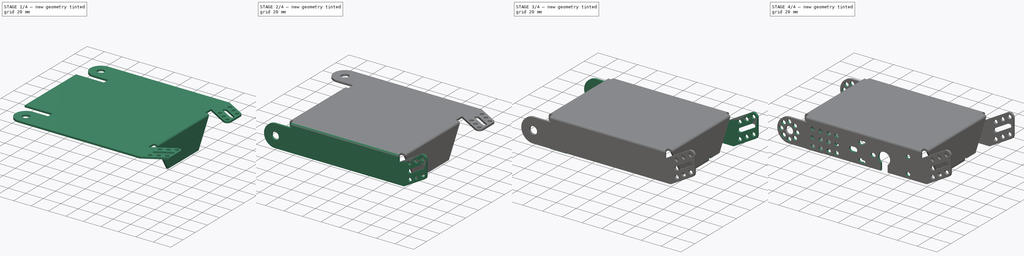
[diagram: build sequence overview — one tinted view per stage of 4, left to right]
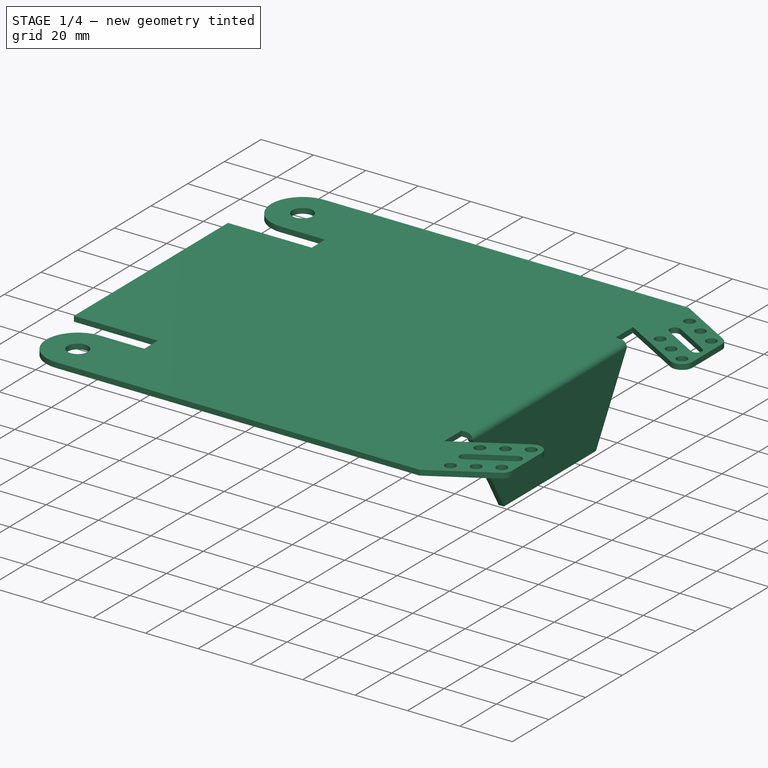
[diagram: stage 1 of 4 — iso view after this stage's code; geometry added in this stage tinted green]
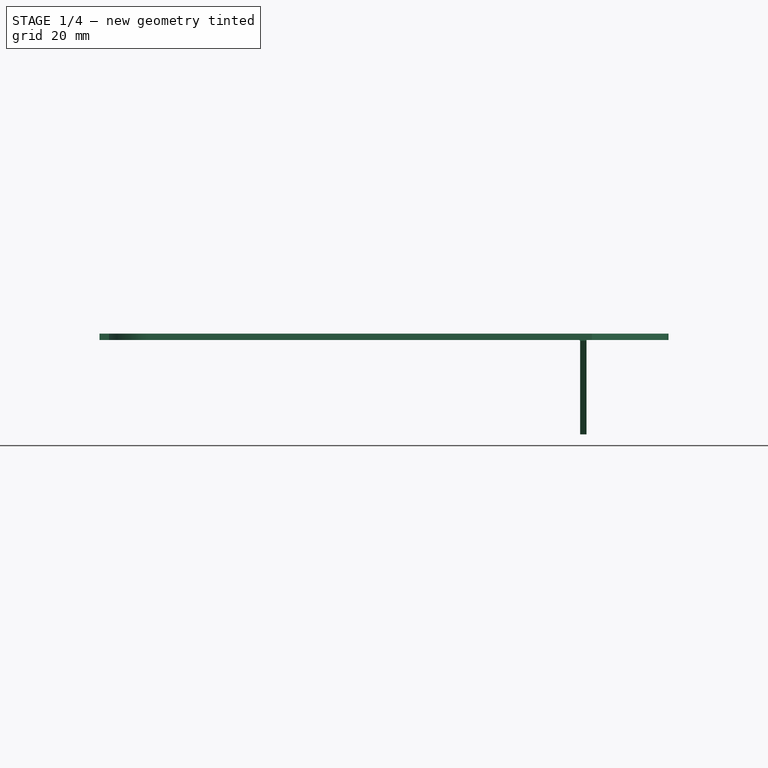
[diagram: stage 1 of 4 — front view after this stage's code; geometry added in this stage tinted green]
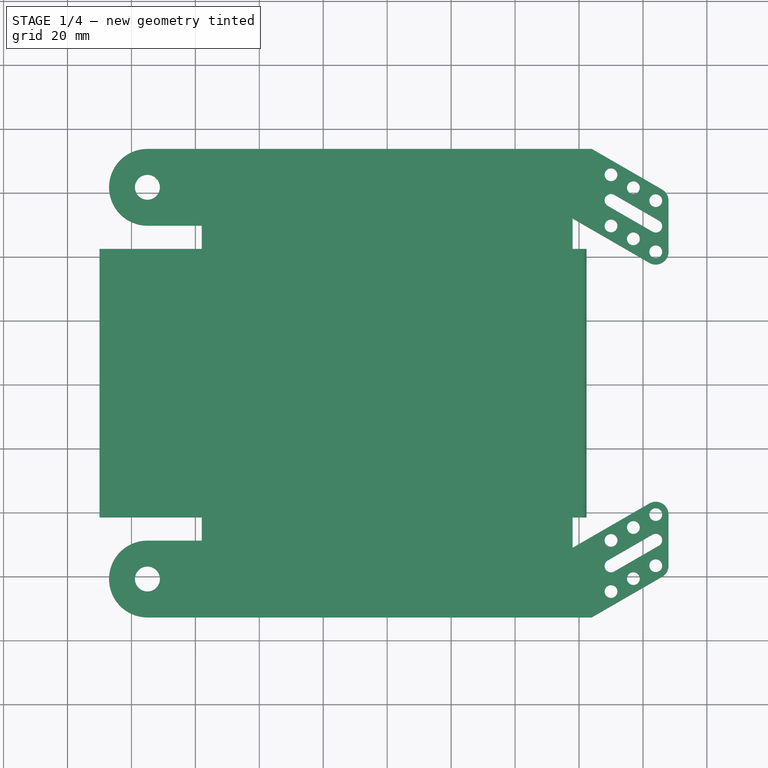
[diagram: stage 1 of 4 — top view after this stage's code; geometry added in this stage tinted green]
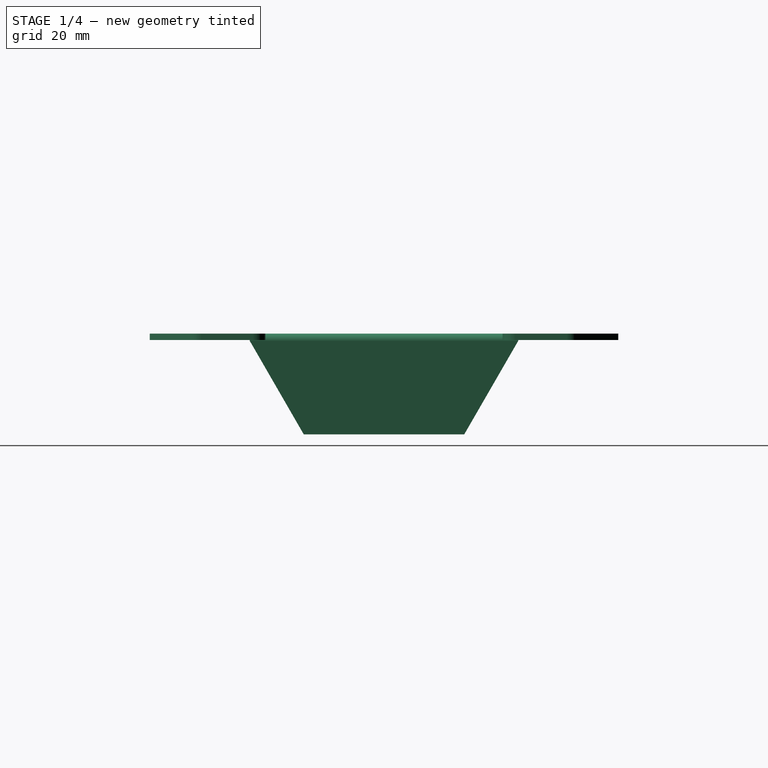
[diagram: stage 1 of 4 — right view after this stage's code; geometry added in this stage tinted green]
FCSTD DOCUMENT  (FreeCAD 0.21R33771 (Git))
Label: chasis_mBot-2
License: Creative Commons Attribution-NonCommercial-ShareAlike 4.0
LicenseURL: https://creativecommons.org/licenses/by-nc-sa/4.0/
objects: Sketcher::SketchObject×14, PartDesign::FeaturePython×6, Image::ImagePlane×3, PartDesign::Pocket×2, PartDesign::Pad×1, App::DocumentObjectGroup×1, PartDesign::Body×1
note: 27 computed .brp shape members not serialized (recipe doc carries the construction recipe); baked Part::Feature solids carry a one-line shape summary decoded from their .brp

FEATURE [Sketcher::SketchObject] Sketch  label="Sketch-chasis-base"
  FullyConstrained = true
  MapMode = 5
  Support = -> [XY_Plane]
  sketch-geometry (76):
    g0: LineSegment StartX=-58 StartY=42 StartZ=0 EndX=58 EndY=42 EndZ=0
    g1: LineSegment StartX=58 StartY=42 StartZ=0 EndX=58 EndY=-42 EndZ=0
    g2: LineSegment StartX=58 StartY=-42 StartZ=0 EndX=-58 EndY=-42 EndZ=0
    g3: LineSegment StartX=-58 StartY=-42 StartZ=0 EndX=-58 EndY=42 EndZ=0
    g4: LineSegment StartX=58 StartY=-42 StartZ=0 EndX=62 EndY=-42 EndZ=0
    g5: LineSegment StartX=62 StartY=-42 StartZ=0 EndX=91.275 EndY=-25.0981 EndZ=0
    g6: LineSegment StartX=91.275 StartY=-25.0981 StartZ=0 EndX=91.275 EndY=25.0981 EndZ=0
    g7: LineSegment StartX=91.275 StartY=25.0981 StartZ=0 EndX=62 EndY=42 EndZ=0
    g8: LineSegment StartX=62 StartY=42 StartZ=0 EndX=58 EndY=42 EndZ=0
    g9: LineSegment StartX=58 StartY=42 StartZ=0 EndX=58 EndY=73.27 EndZ=0
    g10: LineSegment StartX=58 StartY=73.27 StartZ=0 EndX=-75 EndY=73.27 EndZ=0
    g11: ArcOfCircle CenterX=-75 CenterY=61.27 CenterZ=0 NormalX=0 NormalY=0 NormalZ=1 AngleXU=0 Radius=12 StartAngle=1.5708 EndAngle=4.71239
    g12: LineSegment StartX=-75 StartY=49.27 StartZ=0 EndX=-58 EndY=49.27 EndZ=0
    g13: LineSegment StartX=-58 StartY=49.27 StartZ=0 EndX=-58 EndY=42 EndZ=0
    g14: LineSegment StartX=-58 StartY=42 StartZ=0 EndX=-90 EndY=42 EndZ=0
    g15: LineSegment StartX=-90 StartY=42 StartZ=0 EndX=-90 EndY=-42 EndZ=0
    g16: LineSegment StartX=-90 StartY=-42 StartZ=0 EndX=-58 EndY=-42 EndZ=0
    g17: LineSegment StartX=58 StartY=-73.27 StartZ=0 EndX=-75 EndY=-73.27 EndZ=0
    g18: ArcOfCircle CenterX=-75 CenterY=-61.27 CenterZ=0 NormalX=0 NormalY=0 NormalZ=1 AngleXU=0 Radius=12 StartAngle=1.5708 EndAngle=4.71239
    g19: LineSegment StartX=-75 StartY=-49.27 StartZ=0 EndX=-58 EndY=-49.27 EndZ=0
    g20: LineSegment StartX=-58 StartY=-49.27 StartZ=0 EndX=-58 EndY=-42 EndZ=0
    g21: LineSegment StartX=58 StartY=-73.27 StartZ=0 EndX=58 EndY=-42 EndZ=0
    g22: Circle CenterX=-75 CenterY=-61.27 CenterZ=0 NormalX=0 NormalY=0 NormalZ=1 AngleXU=0 Radius=3.9
    g23: Circle CenterX=-75 CenterY=61.27 CenterZ=0 NormalX=0 NormalY=0 NormalZ=1 AngleXU=0 Radius=3.9
    g24: LineSegment StartX=58 StartY=-42 StartZ=0 EndX=58 EndY=-51.4965 EndZ=0
    g25: LineSegment StartX=58 StartY=-51.4965 StartZ=0 EndX=82 EndY=-37.6401 EndZ=0
    g26: LineSegment StartX=88 StartY=-41.1042 StartZ=0 EndX=88 EndY=-57.1042 EndZ=0
    g27: LineSegment StartX=86 StartY=-60.5683 StartZ=0 EndX=64 EndY=-73.27 EndZ=0
    g28: LineSegment StartX=64 StartY=-73.27 StartZ=0 EndX=58 EndY=-73.27 EndZ=0
    g29: ArcOfCircle CenterX=84 CenterY=-41.1042 CenterZ=0 NormalX=0 NormalY=0 NormalZ=1 AngleXU=0 Radius=4 StartAngle=-9e-16 EndAngle=2.0944
    g30: ArcOfCircle CenterX=84 CenterY=-57.1042 CenterZ=0 NormalX=0 NormalY=0 NormalZ=1 AngleXU=0 Radius=4 StartAngle=5.23599 EndAngle=6.28319
    g31: LineSegment StartX=84 StartY=-41.1042 StartZ=0 EndX=70 EndY=-49.1871 EndZ=0
    g32: LineSegment StartX=70 StartY=-65.1871 StartZ=0 EndX=84 EndY=-57.1042 EndZ=0
    g33: Circle CenterX=84 CenterY=-41.1042 CenterZ=0 NormalX=0 NormalY=0 NormalZ=1 AngleXU=0 Radius=2
    g34: Circle CenterX=84 CenterY=-57.1042 CenterZ=0 NormalX=0 NormalY=0 NormalZ=1 AngleXU=0 Radius=2
    g35: Circle CenterX=70 CenterY=-65.1871 CenterZ=0 NormalX=0 NormalY=0 NormalZ=1 AngleXU=0 Radius=2
    g36: Circle CenterX=77 CenterY=-61.1456 CenterZ=0 NormalX=0 NormalY=0 NormalZ=1 AngleXU=0 Radius=2
    g37: Circle CenterX=77 CenterY=-45.1456 CenterZ=0 NormalX=0 NormalY=0 NormalZ=1 AngleXU=0 Radius=2
    g38: Circle CenterX=70 CenterY=-49.1871 CenterZ=0 NormalX=0 NormalY=0 NormalZ=1 AngleXU=0 Radius=2
    g39: ArcOfCircle CenterX=84 CenterY=-49.1042 CenterZ=0 NormalX=0 NormalY=0 NormalZ=1 AngleXU=0 Radius=2 StartAngle=5.23599 EndAngle=8.37758
    g40: ArcOfCircle CenterX=70 CenterY=-57.1871 CenterZ=0 NormalX=0 NormalY=0 NormalZ=1 AngleXU=0 Radius=2 StartAngle=2.0944 EndAngle=5.23599
    g41: LineSegment StartX=83 StartY=-47.3721 StartZ=0 EndX=69 EndY=-55.455 EndZ=0
    g42: LineSegment StartX=71 StartY=-58.9191 StartZ=0 EndX=85 EndY=-50.8362 EndZ=0
    g43: LineSegment StartX=84 StartY=-41.1042 StartZ=0 EndX=84 EndY=-49.1042 EndZ=0
    g44: LineSegment StartX=84 StartY=-49.1042 StartZ=0 EndX=84 EndY=-57.1042 EndZ=0
    g45: LineSegment StartX=70 StartY=-49.1871 StartZ=0 EndX=70 EndY=-57.1871 EndZ=0
    g46: LineSegment StartX=70 StartY=-57.1871 StartZ=0 EndX=70 EndY=-65.1871 EndZ=0
    g47: LineSegment StartX=77 StartY=-45.1456 StartZ=0 EndX=77 EndY=-61.1456 EndZ=0
    g48: LineSegment StartX=70 StartY=-49.1871 StartZ=0 EndX=77 EndY=-49.1871 EndZ=0
    g49: LineSegment StartX=77 StartY=-45.1456 StartZ=0 EndX=84 EndY=-45.1456 EndZ=0
    g50: LineSegment StartX=58 StartY=42 StartZ=0 EndX=58 EndY=51.4965 EndZ=0
    g51: LineSegment StartX=58 StartY=51.4965 StartZ=0 EndX=82 EndY=37.6401 EndZ=0
    g52: LineSegment StartX=88 StartY=41.1042 StartZ=0 EndX=88 EndY=57.1042 EndZ=0
    g53: LineSegment StartX=86 StartY=60.5683 StartZ=0 EndX=64 EndY=73.27 EndZ=0
    g54: LineSegment StartX=64 StartY=73.27 StartZ=0 EndX=58 EndY=73.27 EndZ=0
    g55: ArcOfCircle CenterX=84 CenterY=41.1042 CenterZ=0 NormalX=0 NormalY=0 NormalZ=1 AngleXU=0 Radius=4 StartAngle=4.18879 EndAngle=6.28319
    g56: ArcOfCircle CenterX=84 CenterY=57.1042 CenterZ=0 NormalX=0 NormalY=0 NormalZ=1 AngleXU=0 Radius=4 StartAngle=8e-16 EndAngle=1.0472
    g57: LineSegment StartX=84 StartY=41.1042 StartZ=0 EndX=70 EndY=49.1871 EndZ=0
    g58: LineSegment StartX=70 StartY=65.1871 StartZ=0 EndX=84 EndY=57.1042 EndZ=0
    g59: Circle CenterX=84 CenterY=41.1042 CenterZ=0 NormalX=0 NormalY=0 NormalZ=1 AngleXU=0 Radius=2
    g60: Circle CenterX=84 CenterY=57.1042 CenterZ=0 NormalX=0 NormalY=0 NormalZ=1 AngleXU=0 Radius=2
    g61: Circle CenterX=70 CenterY=65.1871 CenterZ=0 NormalX=0 NormalY=0 NormalZ=1 AngleXU=0 Radius=2
    g62: Circle CenterX=77 CenterY=61.1456 CenterZ=0 NormalX=0 NormalY=0 NormalZ=1 AngleXU=0 Radius=2
    g63: Circle CenterX=77 CenterY=45.1456 CenterZ=0 NormalX=0 NormalY=0 NormalZ=1 AngleXU=0 Radius=2
    g64: Circle CenterX=70 CenterY=49.1871 CenterZ=0 NormalX=0 NormalY=0 NormalZ=1 AngleXU=0 Radius=2
    g65: ArcOfCircle CenterX=84 CenterY=49.1042 CenterZ=0 NormalX=0 NormalY=0 NormalZ=1 AngleXU=0 Radius=2 StartAngle=4.18879 EndAngle=7.33038
    g66: ArcOfCircle CenterX=70 CenterY=57.1871 CenterZ=0 NormalX=0 NormalY=0 NormalZ=1 AngleXU=0 Radius=2 StartAngle=1.0472 EndAngle=4.18879
    g67: LineSegment StartX=83 StartY=47.3721 StartZ=0 EndX=69 EndY=55.455 EndZ=0
    g68: LineSegment StartX=71 StartY=58.9191 StartZ=0 EndX=85 EndY=50.8362 EndZ=0
    g69: LineSegment StartX=84 StartY=41.1042 StartZ=0 EndX=84 EndY=49.1042 EndZ=0
    g70: LineSegment StartX=84 StartY=49.1042 StartZ=0 EndX=84 EndY=57.1042 EndZ=0
    g71: LineSegment StartX=70 StartY=49.1871 StartZ=0 EndX=70 EndY=57.1871 EndZ=0
    g72: LineSegment StartX=70 StartY=57.1871 StartZ=0 EndX=70 EndY=65.1871 EndZ=0
    g73: LineSegment StartX=77 StartY=45.1456 StartZ=0 EndX=77 EndY=61.1456 EndZ=0
    g74: LineSegment StartX=70 StartY=49.1871 StartZ=0 EndX=77 EndY=49.1871 EndZ=0
    g75: LineSegment StartX=77 StartY=45.1456 StartZ=0 EndX=84 EndY=45.1456 EndZ=0
  constraints (190):
    c: Coincident(g0,g1)
    c: Coincident(g1,g2)
    c: Coincident(g2,g3)
    c: Coincident(g3,g0)
    c: Horizontal(g0)
    c: Horizontal(g2)
    c: Vertical(g1)
    c: Vertical(g3)
    c: Symmetric(g0,g1,g-1)
    c: DistanceY(g3,g3) = 84
    c: DistanceX(g0,g0) = 116
    c: Coincident(g1,g4)
    c: Horizontal(g4)
    c: Coincident(g4,g5)
    c: Coincident(g5,g6)
    c: Coincident(g6,g7)
    c: Coincident(g7,g8)
    c: Coincident(g8,g0)
    c: Horizontal(g8)
    c: Coincident(g9,g10)
    c: Horizontal(g10)
    c: Tangent(g10,g11) = -1.5708
    c: Tangent(g11,g12) = -1.5708
    c: Coincident(g12,g13)
    c: Coincident(g13,g0)
    c: Vertical(g13)
    c: Horizontal(g12)
    c: Angle(g1,g7) = 1.0472
    c: Angle(g5,g1) = 1.0472
    c: Symmetric(g6,g5,g-1)
    c: Coincident(g9,g8)
    c: Vertical(g9)
    c: Coincident(g13,g14)
    c: Horizontal(g14)
    c: Coincident(g14,g15)
    c: Vertical(g15)
    c: Coincident(g15,g16)
    c: Coincident(g16,g2)
    c: Horizontal(g16)
    c: Horizontal(g17)
    c: Tangent(g17,g18) = 1.5708
    c: Tangent(g18,g19) = 1.5708
    c: Horizontal(g19)
    c: Coincident(g20,g19)
    c: Coincident(g20,g16)
    c: Vertical(g20)
    c: Coincident(g21,g17)
    c: Coincident(g21,g4)
    c: Vertical(g21)
    c: DistanceX(g8,g8) = 4
    c: Equal(g18,g11)
    c: Equal(g13,g20)
    c: DistanceY(g13,g13) = 7.27
    c: DistanceX(g16,g16) = 32
    c: Radius(g18) = 12
    c: DistanceX(g19,g19) = 17
    c: Coincident(g22,g18)
    c: Radius(g22) = 3.9
    c: Equal(g12,g19)
    c: Coincident(g23,g11)
    c: Equal(g23,g22)
    c: DistanceX(g4,g5) = 33.275
    c: Coincident(g4,g24)
    c: PointOnObject(g24,g21)
    c: Coincident(g24,g25)
    c: Vertical(g26)
    c: Coincident(g27,g28)
    c: Coincident(g28,g17)
    c: Horizontal(g28)
    c: Tangent(g25,g29) = 1.5708
    c: Tangent(g26,g29) = 1.5708
    c: Tangent(g26,g30) = 1.5708
    c: Tangent(g27,g30) = 1.5708
    c: Parallel(g25,g27)
    c: Parallel(g27,g5)
    c: Equal(g29,g30)
    c: Radius(g29) = 4
    c: DistanceX(g17,g26) = 30
    c: DistanceX(g28,g28) = 6
    c: Coincident(g31,g29)
    c: Coincident(g32,g30)
    c: Parallel(g32,g31)
    c: Parallel(g31,g25)
    c: Coincident(g33,g29)
    c: Coincident(g34,g30)
    c: PointOnObject(g36,g32)
    c: PointOnObject(g37,g31)
    c: Coincident(g38,g31)
    c: Tangent(g39,g41) = -1.5708
    c: Tangent(g41,g40) = -1.5708
    c: Tangent(g40,g42) = -1.5708
    c: Tangent(g42,g39) = -1.5708
    c: Equal(g39,g40)
    c: Equal(g38,g40)
    c: Equal(g40,g35)
    c: Equal(g35,g36)
    c: Equal(g36,g34)
    c: Equal(g34,g37)
    c: Equal(g37,g33)
    c: Radius(g38) = 2
    c: Coincident(g43,g29)
    c: Coincident(g43,g39)
    c: Coincident(g44,g39)
    c: Coincident(g44,g30)
    c: Vertical(g43)
    c: Coincident(g45,g38)
    c: Coincident(g45,g40)
    c: Vertical(g45)
    c: Coincident(g46,g40)
    c: Coincident(g46,g35)
    c: Vertical(g46)
    c: Equal(g45,g43)
    c: Equal(g43,g44)
    c: Coincident(g32,g35)
    c: DistanceY(g35,g38) = 16
    c: DistanceX(g35,g30) = 14
    c: Coincident(g47,g37)
    c: Coincident(g47,g36)
    c: Vertical(g47)
    c: Coincident(g48,g38)
    c: PointOnObject(g48,g47)
    c: Horizontal(g48)
    c: Coincident(g49,g37)
    c: PointOnObject(g49,g43)
    c: Horizontal(g49)
    c: Equal(g48,g49)
    c: Coincident(g50,g51)
    c: Vertical(g52)
    c: Coincident(g53,g54)
    c: Horizontal(g54)
    c: Tangent(g51,g55) = -1.5708
    c: Tangent(g52,g55) = -1.5708
    c: Tangent(g52,g56) = -1.5708
    c: Tangent(g53,g56) = -1.5708
    c: Parallel(g51,g53)
    c: Equal(g55,g56)
    c: Radius(g55) = 4
    c: Coincident(g57,g55)
    c: Coincident(g58,g56)
    c: Parallel(g58,g57)
    c: Parallel(g57,g51)
    c: Coincident(g59,g55)
    c: Coincident(g60,g56)
    c: PointOnObject(g62,g58)
    c: PointOnObject(g63,g57)
    c: Coincident(g64,g57)
    c: Tangent(g65,g67) = 1.5708
    c: Tangent(g67,g66) = 1.5708
    c: Tangent(g66,g68) = 1.5708
    c: Tangent(g68,g65) = 1.5708
    c: Equal(g65,g66)
    c: Equal(g64,g66)
    c: Equal(g66,g61)
    c: Equal(g61,g62)
    c: Equal(g62,g60)
    c: Equal(g60,g63)
    c: Equal(g63,g59)
    c: Radius(g64) = 2
    c: Coincident(g69,g55)
    c: Coincident(g69,g65)
    c: Coincident(g70,g65)
    c: Coincident(g70,g56)
    c: Vertical(g69)
    c: Coincident(g71,g64)
    c: Coincident(g71,g66)
    c: Vertical(g71)
    c: Coincident(g72,g66)
    c: Coincident(g72,g61)
    c: Vertical(g72)
    c: Equal(g71,g69)
    c: Equal(g69,g70)
    c: Coincident(g58,g61)
    c: Coincident(g73,g63)
    c: Coincident(g73,g62)
    c: Vertical(g73)
    c: Coincident(g74,g64)
    c: PointOnObject(g74,g73)
    c: Horizontal(g74)
    c: Coincident(g75,g63)
    c: PointOnObject(g75,g69)
    c: Horizontal(g75)
    c: Equal(g74,g75)
    c: Coincident(g50,g8)
    c: Vertical(g50)
    c: Parallel(g51,g7)
    c: Coincident(g54,g10)
    c: DistanceX(g54,g54) = 6
    c: DistanceX(g61,g56) = 14
    c: DistanceY(g64,g61) = 16
    c: DistanceX(g10,g52) = 30
FEATURE [PartDesign::Pad] Pad  label="Pad-chasis-base"
  Direction = (0,0,1)
  Length = 2
  Length2 = 10
  Profile = -> Sketch
  ReferenceAxis = -> Sketch [N_Axis]
  Type = 0
FEATURE [Sketcher::SketchObject] Sketch001  label="Sketch-bend-tail"
  ExternalGeometry = -> [Pad]
  FullyConstrained = false
  MapMode = 5
  Support = -> [XY_Plane]
  sketch-geometry (1):
    g0: LineSegment StartX=60 StartY=43.2036 StartZ=0 EndX=60 EndY=-43.2158 EndZ=0
  constraints (2):
    c: Vertical(g0)
    c: DistanceX(g-3,g0) = 2
FEATURE [PartDesign::FeaturePython] Fold  label="Fold-tail"  # WARN: FeaturePython — macro-defined, semantics opaque (R4)
  BaseFeature = -> Pad
  BendLine = -> Sketch001
  Position = 0
  angle = 90
  baseObject = -> Pad [Face53]
  invert = false
  invertbend = false
  kfactor = 0.5
  radius = 0.35
  unfold = false
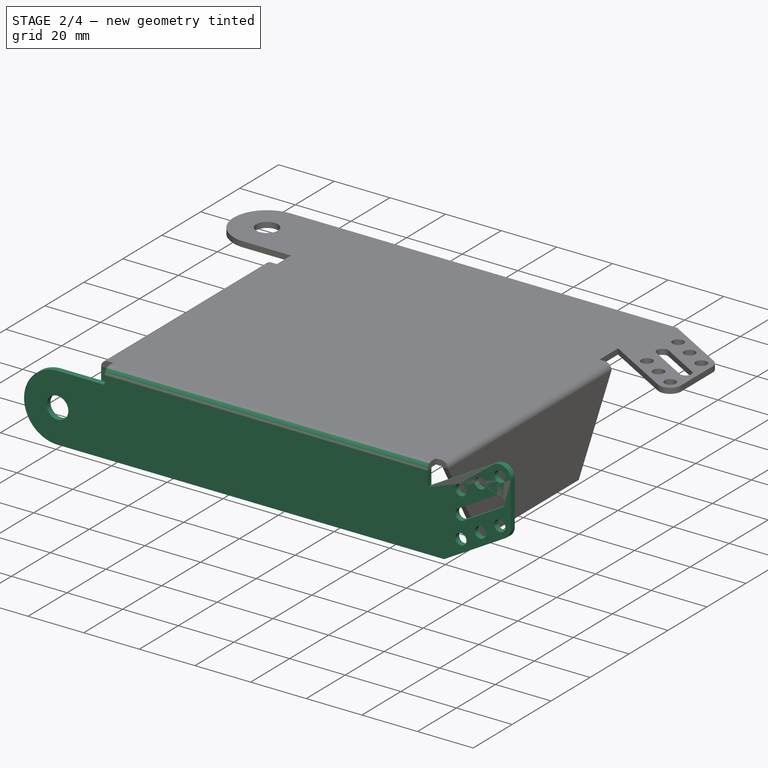
[diagram: stage 2 of 4 — iso view after this stage's code; geometry added in this stage tinted green]
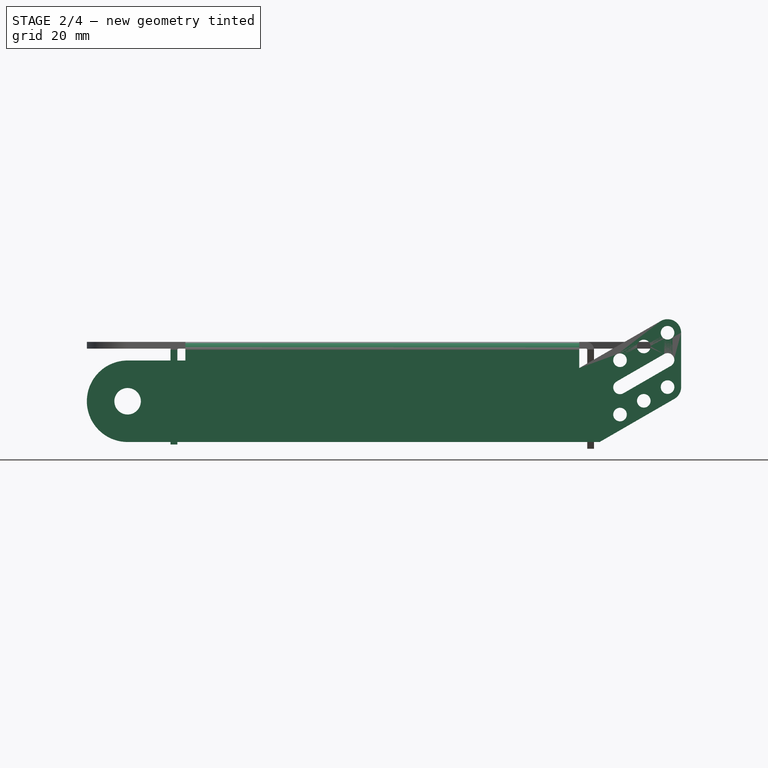
[diagram: stage 2 of 4 — front view after this stage's code; geometry added in this stage tinted green]
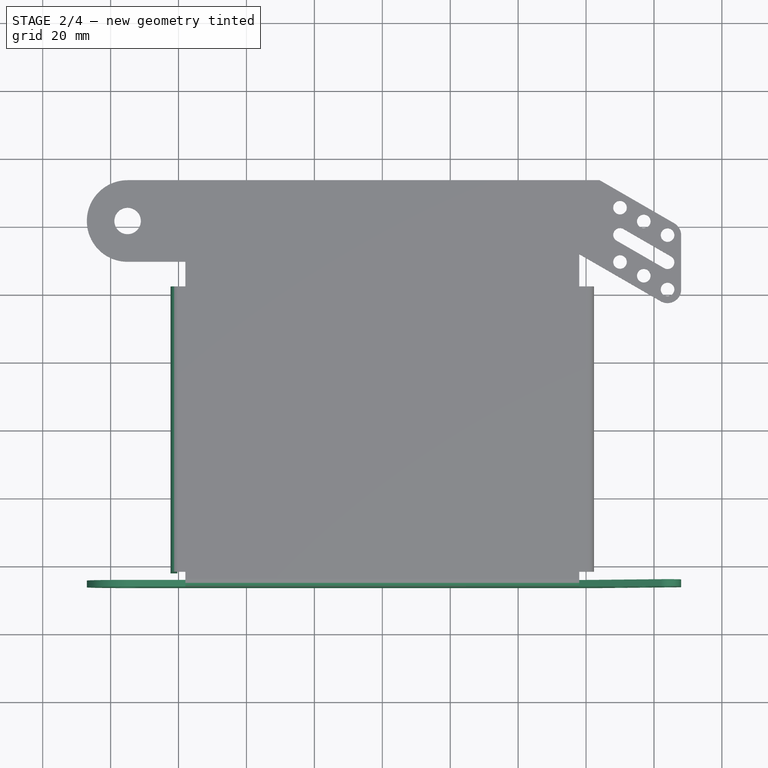
[diagram: stage 2 of 4 — top view after this stage's code; geometry added in this stage tinted green]
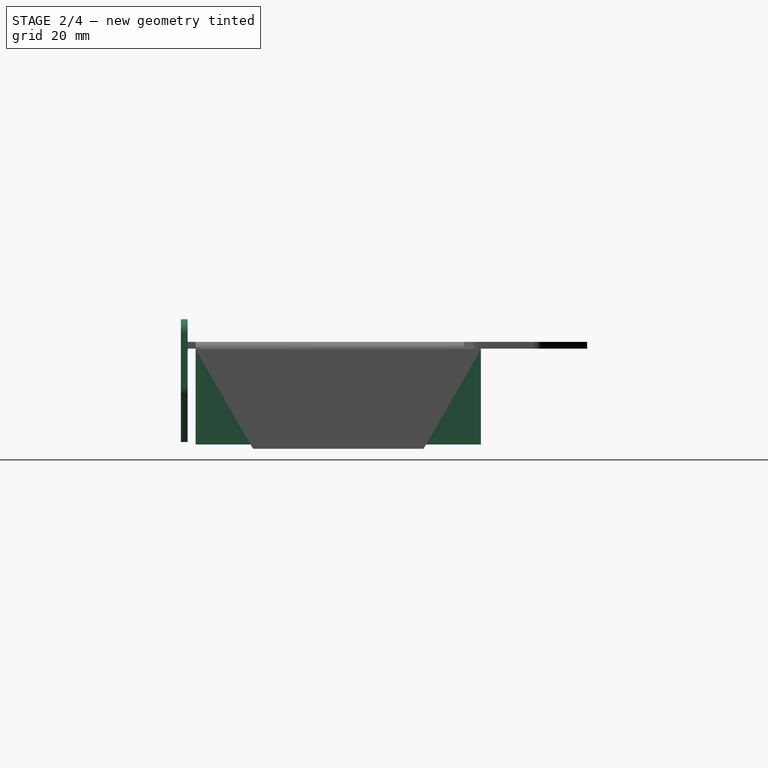
[diagram: stage 2 of 4 — right view after this stage's code; geometry added in this stage tinted green]
FEATURE [Sketcher::SketchObject] Sketch002  label="Sketch-bend-head"
  ExternalGeometry = -> [Fold]
  FullyConstrained = false
  MapMode = 5
  Support = -> [XY_Plane]
  sketch-geometry (1):
    g0: LineSegment StartX=-60 StartY=43.0425 StartZ=0 EndX=-60 EndY=-44.0534 EndZ=0
  constraints (2):
    c: Vertical(g0)
    c: DistanceX(g0,g-3) = 2
FEATURE [PartDesign::FeaturePython] Fold001  label="Fold-head"  # WARN: FeaturePython — macro-defined, semantics opaque (R4)
  BaseFeature = -> Fold
  BendLine = -> Sketch002
  Position = 0
  angle = 90
  baseObject = -> Fold [Face2]
  invert = false
  invertbend = false
  kfactor = 0.5
  radius = 0.35
  unfold = false
FEATURE [Sketcher::SketchObject] Sketch003  label="Sketch-bend-right-side"
  ExternalGeometry = -> [Fold001]
  FullyConstrained = false
  MapMode = 5
  Support = -> [XY_Plane]
  sketch-geometry (1):
    g0: LineSegment StartX=-59.881 StartY=-44 StartZ=0 EndX=59.1175 EndY=-44 EndZ=0
  constraints (2):
    c: Horizontal(g0)
    c: DistanceY(g0,g-3) = 2
FEATURE [PartDesign::FeaturePython] Fold002  label="Fold-right-side"  # WARN: FeaturePython — macro-defined, semantics opaque (R4)
  BaseFeature = -> Fold001
  BendLine = -> Sketch003
  Position = 0
  angle = 90
  baseObject = -> Fold001 [Face5]
  invert = false
  invertbend = false
  kfactor = 0.5
  radius = 0.35
  unfold = false
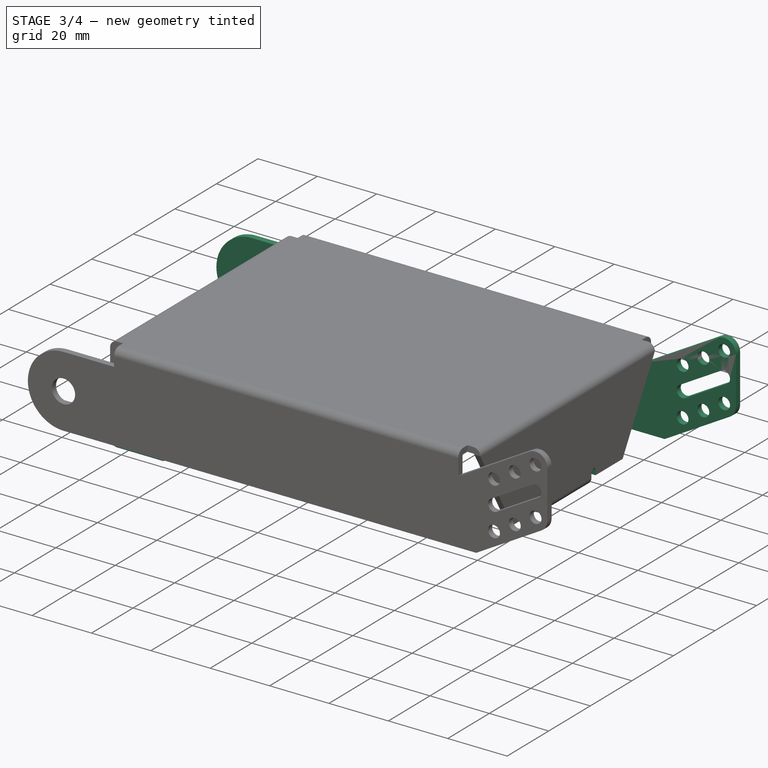
[diagram: stage 3 of 4 — iso view after this stage's code; geometry added in this stage tinted green]
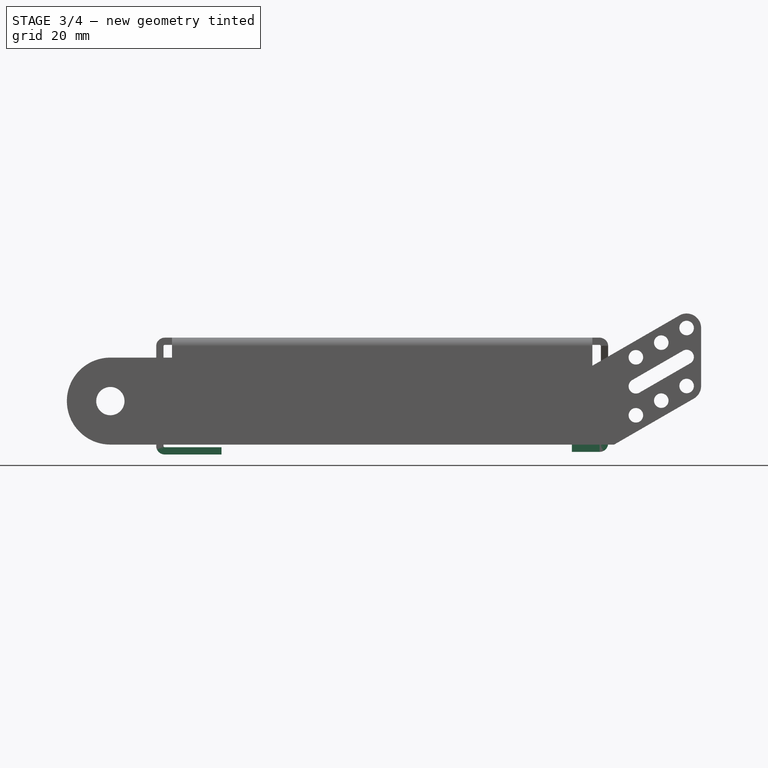
[diagram: stage 3 of 4 — front view after this stage's code; geometry added in this stage tinted green]
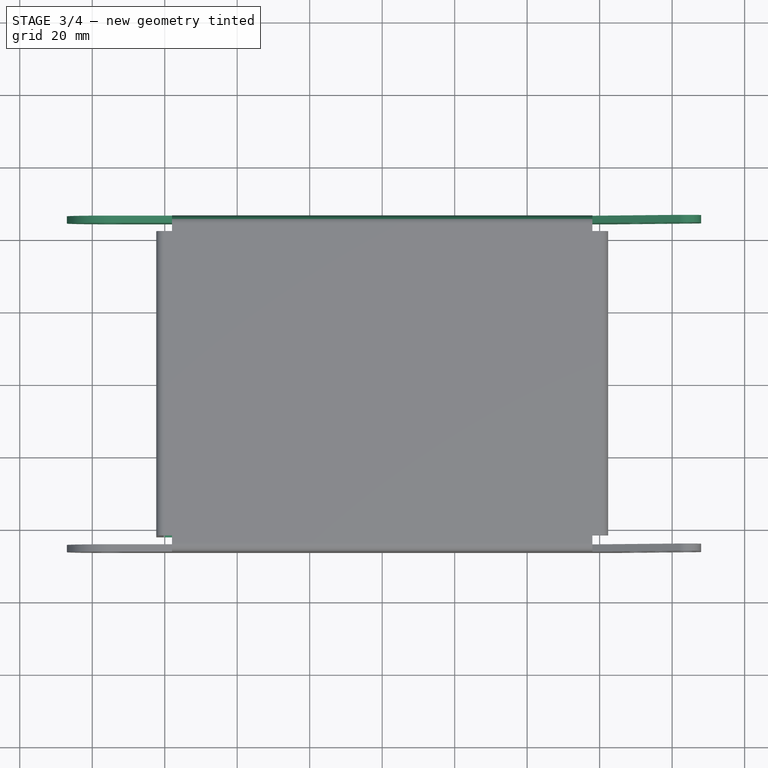
[diagram: stage 3 of 4 — top view after this stage's code; geometry added in this stage tinted green]
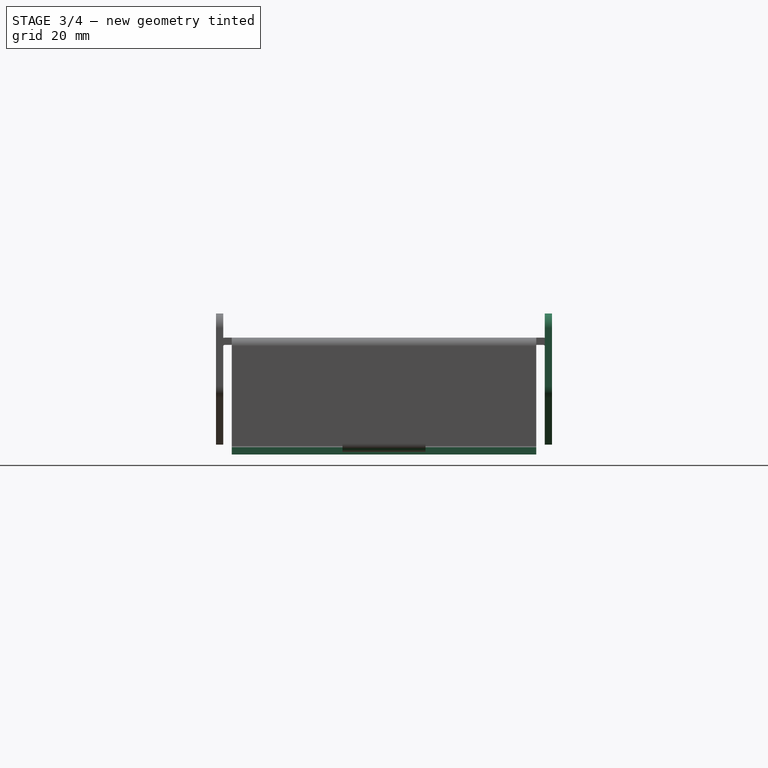
[diagram: stage 3 of 4 — right view after this stage's code; geometry added in this stage tinted green]
FEATURE [Sketcher::SketchObject] Sketch004  label="Sketch-bend-left-side"
  ExternalGeometry = -> [Fold002]
  FullyConstrained = false
  MapMode = 5
  Support = -> [XY_Plane]
  sketch-geometry (1):
    g0: LineSegment StartX=-58.7819 StartY=44 StartZ=0 EndX=59.026 EndY=44 EndZ=0
  constraints (2):
    c: Horizontal(g0)
    c: DistanceY(g-3,g0) = 2
FEATURE [PartDesign::FeaturePython] Fold003  label="Fold-left-side"  # WARN: FeaturePython — macro-defined, semantics opaque (R4)
  BaseFeature = -> Fold002
  BendLine = -> Sketch004
  Position = 0
  angle = 90
  baseObject = -> Fold002 [Face2]
  invert = false
  invertbend = false
  kfactor = 0.5
  radius = 0.35
  unfold = false
FEATURE [PartDesign::FeaturePython] Bend  label="Bend-line-sensors-support"  # WARN: FeaturePython — macro-defined, semantics opaque (R4)
  AutoMiter = true
  BaseFeature = -> Fold003
  BendType = 2
  LengthList = [15.65]
  LengthSpec = 0
  ReliefFactor = 0.7
  UseReliefFactor = false
  angle = -90
  baseObject = -> Fold003 [Face79]
  bendAList = [-90]
  extend1 = 0
  extend2 = 0
  gap1 = 0
  gap2 = 0
  invert = false
  kfactor = 0.5
  length = 15.65
  maxExtendDist = 5
  minGap = 0.2
  minReliefGap = 1
  miterangle1 = 0
  miterangle2 = 0
  offset = 0
  radius = 0.35
  reliefType = 0
  reliefd = 1
  reliefw = 0.8
  sketchflip = false
  sketchinvert = false
  unfold = false
FEATURE [PartDesign::FeaturePython] Bend001  label="Bend-tail-bottom-support"  # WARN: FeaturePython — macro-defined, semantics opaque (R4)
  AutoMiter = true
  BaseFeature = -> Bend
  BendType = 1
  LengthList = [7.65]
  LengthSpec = 0
  ReliefFactor = 0.7
  UseReliefFactor = false
  angle = -90
  baseObject = -> Bend [Face93]
  bendAList = [-90]
  extend1 = 0
  extend2 = 0
  gap1 = 15
  gap2 = 15
  invert = false
  kfactor = 0.5
  length = 7.65
  maxExtendDist = 5
  minGap = 0.2
  minReliefGap = 1
  miterangle1 = 0
  miterangle2 = 0
  offset = 0
  radius = 0.35
  reliefType = 1
  reliefd = 2.5
  reliefw = 2
  sketchflip = false
  sketchinvert = false
  unfold = false
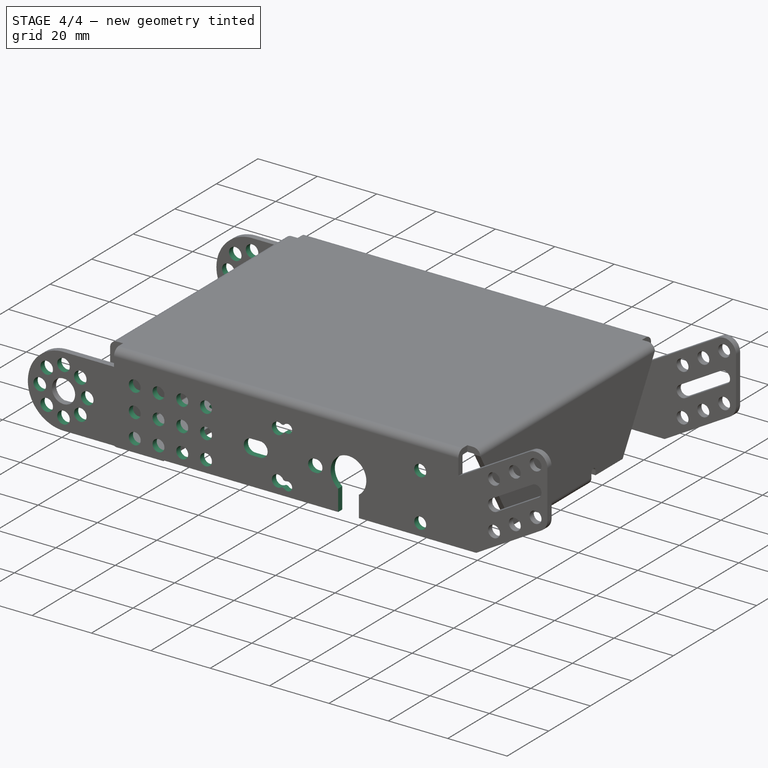
[diagram: stage 4 of 4 — iso view after this stage's code; geometry added in this stage tinted green]
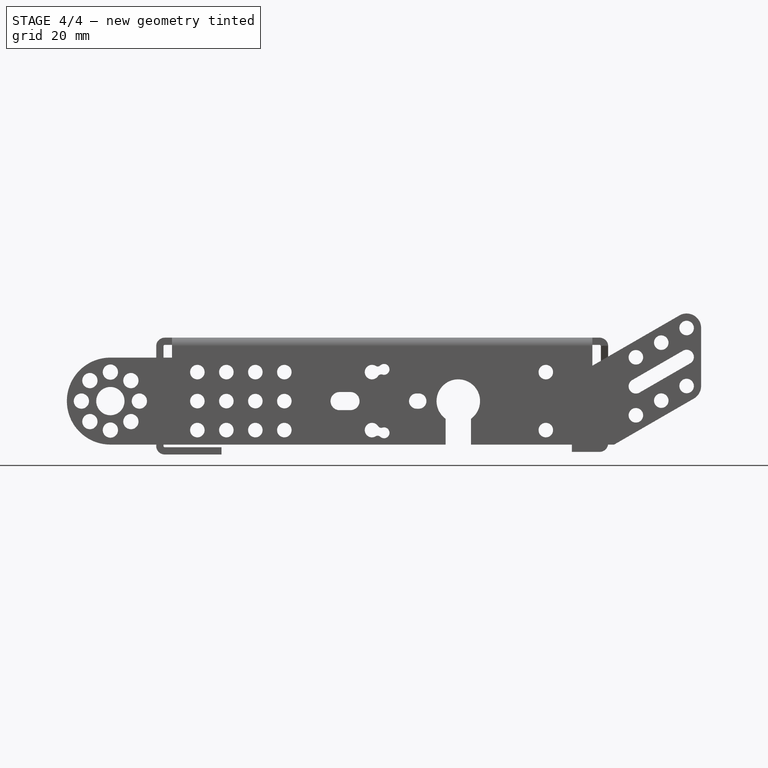
[diagram: stage 4 of 4 — front view after this stage's code; geometry added in this stage tinted green]
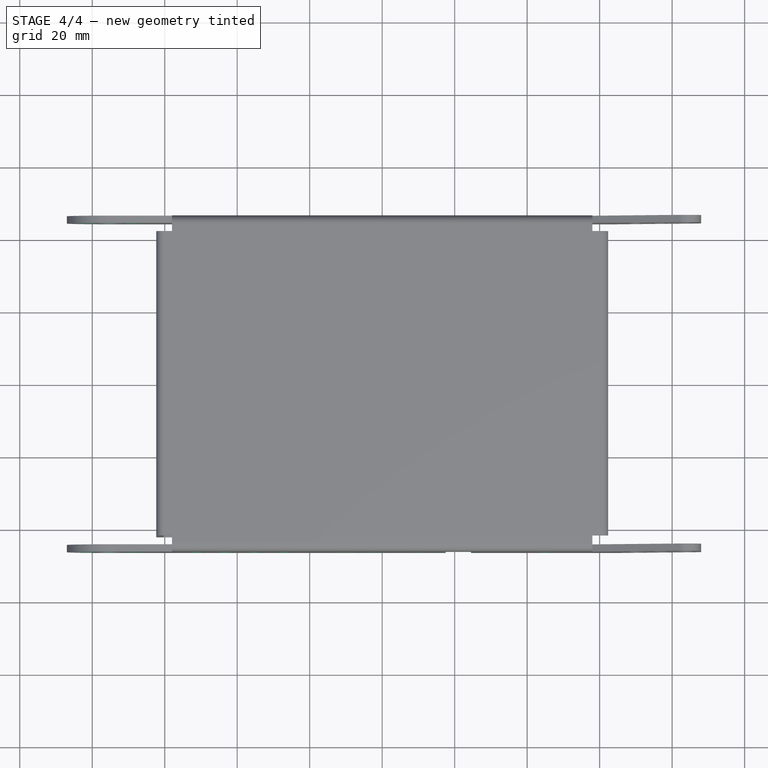
[diagram: stage 4 of 4 — top view after this stage's code; geometry added in this stage tinted green]
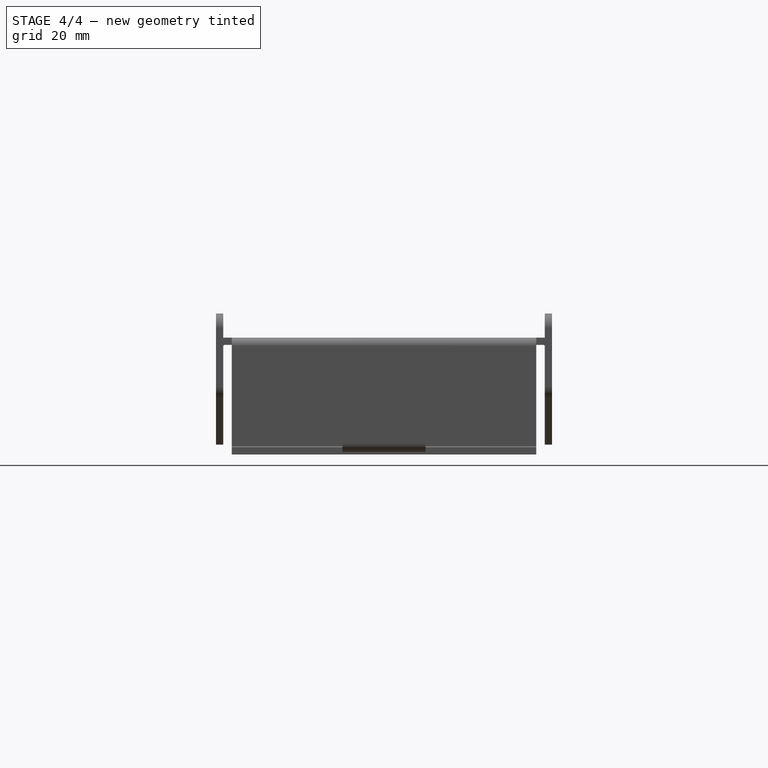
[diagram: stage 4 of 4 — right view after this stage's code; geometry added in this stage tinted green]
FEATURE [Sketcher::SketchObject] Sketch005  label="Sketch-rear-height"
  ExternalGeometry = -> [Bend001]
  FullyConstrained = true
  MapMode = 5
  Placement = pos=(62.35,0,0) rot=(0.57735,0.57735,0.57735;2.0944rad)
  Support = -> [Bend001]
  sketch-geometry (4):
    g0: LineSegment StartX=11.5 StartY=2 StartZ=0 EndX=-11.5 EndY=2 EndZ=0
    g1: LineSegment StartX=-11.5 StartY=2 StartZ=0 EndX=-11.5 EndY=-29.7 EndZ=0
    g2: LineSegment StartX=-11.5 StartY=-29.7 StartZ=0 EndX=11.5 EndY=-29.7 EndZ=0
    g3: LineSegment StartX=11.5 StartY=-29.7 StartZ=0 EndX=11.5 EndY=2 EndZ=0
  constraints (11):
    c: Coincident(g0,g1)
    c: Coincident(g2,g3)
    c: Coincident(g3,g0)
    c: Vertical(g1)
    c: Vertical(g3)
    c: PointOnObject(g0,g-3)
    c: Coincident(g1,g2)
    c: Horizontal(g2)
    c: DistanceY(g1,g1) = 31.7
    c: Symmetric(g0,g0,g-2)
    c: DistanceX(g0,g0) = 23
FEATURE [Sketcher::SketchObject] Sketch006  label="Sketch-front-height"
  ExternalGeometry = -> [Bend001]
  FullyConstrained = true
  MapMode = 5
  Placement = pos=(-62.35,0,0) rot=(0.57735,-0.57735,-0.57735;2.0944rad)
  Support = -> [Bend001]
  sketch-geometry (4):
    g0: LineSegment StartX=20 StartY=2 StartZ=0 EndX=-20 EndY=2 EndZ=0
    g1: LineSegment StartX=-20 StartY=2 StartZ=0 EndX=-20 EndY=-30.2 EndZ=0
    g2: LineSegment StartX=-20 StartY=-30.2 StartZ=0 EndX=20 EndY=-30.2 EndZ=0
    g3: LineSegment StartX=20 StartY=2 StartZ=0 EndX=20 EndY=-30.2 EndZ=0
  constraints (11):
    c: Coincident(g0,g1)
    c: Coincident(g1,g2)
    c: Horizontal(g2)
    c: Vertical(g1)
    c: DistanceY(g1,g1) = 32.2
    c: Coincident(g3,g0)
    c: Coincident(g3,g2)
    c: Vertical(g3)
    c: PointOnObject(g0,g-3)
    c: Symmetric(g0,g0,g-2)
    c: DistanceX(g0,g0) = 40
FEATURE [Sketcher::SketchObject] Sketch008  label="Sketch-side-height"
  AttachmentOffset = pos=(0,0,1) rot=(0,0,1;0rad)
  ExternalGeometry = -> [Bend001]
  FullyConstrained = true
  MapMode = 5
  Placement = pos=(0,-47.35,2e-16) rot=(1,0,0;1.5708rad)
  Support = -> [Bend001]
  sketch-geometry (4):
    g0: LineSegment StartX=-25 StartY=2 StartZ=0 EndX=25 EndY=2 EndZ=0
    g1: LineSegment StartX=25 StartY=2 StartZ=0 EndX=25 EndY=-27.5 EndZ=0
    g2: LineSegment StartX=25 StartY=-27.5 StartZ=0 EndX=-25 EndY=-27.5 EndZ=0
    g3: LineSegment StartX=-25 StartY=-27.5 StartZ=0 EndX=-25 EndY=2 EndZ=0
  constraints (11):
    c: Coincident(g0,g1)
    c: Coincident(g1,g2)
    c: Coincident(g2,g3)
    c: Coincident(g3,g0)
    c: Horizontal(g2)
    c: Vertical(g1)
    c: Vertical(g3)
    c: DistanceY(g1,g1) = 29.5
    c: PointOnObject(g0,g-3)
    c: Symmetric(g0,g0,g-2)
    c: DistanceX(g0,g0) = 50
FEATURE [Sketcher::SketchObject] Sketch009  label="Sketch-bottom-screw-holes"
  ExternalGeometry = -> [Bend001]
  FullyConstrained = true
  MapMode = 5
  Placement = pos=(0,0,-30.2294) rot=(1,0,0;3.14159rad)
  Support = -> [Bend001]
  sketch-geometry (12):
    g0: Circle CenterX=-50.55 CenterY=0 CenterZ=0 NormalX=0 NormalY=0 NormalZ=1 AngleXU=0 Radius=2
    g1: Circle CenterX=56.35 CenterY=0 CenterZ=0 NormalX=0 NormalY=0 NormalZ=1 AngleXU=0 Radius=2
    g2: Circle CenterX=-50.55 CenterY=32 CenterZ=0 NormalX=0 NormalY=0 NormalZ=1 AngleXU=0 Radius=2
    g3: Circle CenterX=-50.55 CenterY=-32 CenterZ=0 NormalX=0 NormalY=0 NormalZ=1 AngleXU=0 Radius=2
    g4: LineSegment StartX=-50.55 StartY=32 StartZ=0 EndX=-50.55 EndY=-32 EndZ=0
    g5: LineSegment StartX=56.35 StartY=8 StartZ=0 EndX=56.35 EndY=-8 EndZ=0
    g6: Circle CenterX=56.35 CenterY=8 CenterZ=0 NormalX=0 NormalY=0 NormalZ=1 AngleXU=0 Radius=1.8
    g7: Circle CenterX=56.35 CenterY=-8 CenterZ=0 NormalX=0 NormalY=0 NormalZ=1 AngleXU=0 Radius=1.8
    g8: Circle CenterX=-50.55 CenterY=8 CenterZ=0 NormalX=0 NormalY=0 NormalZ=1 AngleXU=0 Radius=1.8
    g9: Circle CenterX=-50.55 CenterY=16 CenterZ=0 NormalX=0 NormalY=0 NormalZ=1 AngleXU=0 Radius=1.8
    g10: Circle CenterX=-50.55 CenterY=-8 CenterZ=0 NormalX=0 NormalY=0 NormalZ=1 AngleXU=0 Radius=1.8
    g11: Circle CenterX=-50.55 CenterY=-16 CenterZ=0 NormalX=0 NormalY=0 NormalZ=1 AngleXU=0 Radius=1.8
  constraints (32):
    c: PointOnObject(g0,g-1)
    c: PointOnObject(g1,g-1)
    c: Equal(g2,g0)
    c: Equal(g0,g3)
    c: Equal(g3,g1)
    c: Radius(g2) = 2
    c: Coincident(g4,g2)
    c: Coincident(g4,g3)
    c: PointOnObject(g0,g4)
    c: Symmetric(g3,g2,g-1)
    c: PointOnObject(g1,g5)
    c: Symmetric(g5,g5,g-1)
    c: Coincident(g6,g5)
    c: Coincident(g7,g5)
    c: PointOnObject(g8,g4)
    c: PointOnObject(g9,g4)
    c: PointOnObject(g10,g4)
    c: PointOnObject(g11,g4)
    c: Equal(g11,g10)
    c: Equal(g10,g8)
    c: Equal(g8,g9)
    c: Equal(g9,g6)
    c: Equal(g6,g7)
    c: Radius(g6) = 1.8
    c: DistanceY(g11,g10) = 8
    c: DistanceY(g10,g0) = 8
    c: DistanceY(g0,g8) = 8
    c: DistanceY(g8,g9) = 8
    c: DistanceY(g4,g4) = 64
    c: DistanceY(g5,g5) = 16
    c: DistanceX(g2,g-3) = 6.2
    c: DistanceX(g-4,g7) = 4
FEATURE [PartDesign::Pocket] Pocket  label="Pocket-bottom-screw-holes"
  BaseFeature = -> Bend001
  Direction = (0,0,1)
  Length = 5
  Length2 = 5
  Profile = -> Sketch009
  ReferenceAxis = -> Sketch009 [N_Axis]
  Type = 0
FEATURE [Sketcher::SketchObject] Sketch007  label="Sketch-bottom-widths"
  ExternalGeometry = -> [Bend001]
  FullyConstrained = true
  MapMode = 5
  Placement = pos=(0,0,-30.2294) rot=(1,0,0;3.14159rad)
  Support = -> [Pocket]
  sketch-geometry (8):
    g0: LineSegment StartX=-62.35 StartY=12.5 StartZ=0 EndX=-44.35 EndY=12.5 EndZ=0
    g1: LineSegment StartX=-44.35 StartY=12.5 StartZ=0 EndX=-44.35 EndY=-12.5 EndZ=0
    g2: LineSegment StartX=-44.35 StartY=-12.5 StartZ=0 EndX=-62.35 EndY=-12.5 EndZ=0
    g3: LineSegment StartX=-62.35 StartY=-12.5 StartZ=0 EndX=-62.35 EndY=12.5 EndZ=0
    g4: LineSegment StartX=62.35 StartY=11.4548 StartZ=0 EndX=52.35 EndY=11.4548 EndZ=0
    g5: LineSegment StartX=52.35 StartY=11.4548 StartZ=0 EndX=52.35 EndY=-11.4548 EndZ=0
    g6: LineSegment StartX=52.35 StartY=-11.4548 StartZ=0 EndX=62.35 EndY=-11.4548 EndZ=0
    g7: LineSegment StartX=62.35 StartY=-11.4548 StartZ=0 EndX=62.35 EndY=11.4548 EndZ=0
  constraints (21):
    c: Coincident(g0,g1)
    c: Coincident(g1,g2)
    c: Coincident(g2,g3)
    c: Coincident(g3,g0)
    c: Horizontal(g0)
    c: Horizontal(g2)
    c: Vertical(g3)
    c: DistanceX(g2,g2) = 18
    c: Coincident(g4,g5)
    c: Coincident(g5,g6)
    c: Coincident(g6,g7)
    c: Coincident(g7,g4)
    c: Horizontal(g4)
    c: Horizontal(g6)
    c: Vertical(g5)
    c: Coincident(g4,g-3)
    c: DistanceX(g6,g6) = 10
    c: Coincident(g6,g-3)
    c: PointOnObject(g0,g-4)
    c: Symmetric(g0,g1,g-1)
    c: DistanceY(g3,g3) = 25
FEATURE [App::DocumentObjectGroup] Group  label="Group-measures"
  Group = -> [Sketch005,Sketch006,Sketch007,Sketch008]
FEATURE [Sketcher::SketchObject] Sketch010  label="Sketch-space-limit-v"
  ExternalGeometry = -> [Pocket]
  FullyConstrained = true
  MapMode = 5
  Placement = pos=(0,0,0) rot=(1,0,0;1.5708rad)
  Support = -> [XZ_Plane]
  sketch-geometry (7):
    g0: LineSegment StartX=52.35 StartY=-34.5 StartZ=0 EndX=113 EndY=-34.5 EndZ=0
    g1: LineSegment StartX=113 StartY=152 StartZ=0 EndX=-87 EndY=152 EndZ=0
    g2: LineSegment StartX=-87 StartY=152 StartZ=0 EndX=-87 EndY=-48 EndZ=0
    g3: LineSegment StartX=-87 StartY=-48 StartZ=0 EndX=113 EndY=-48 EndZ=0
    g4: LineSegment StartX=113 StartY=-48 StartZ=0 EndX=113 EndY=152 EndZ=0
    g5: LineSegment StartX=62.5 StartY=-34.5 StartZ=0 EndX=62.5 EndY=152 EndZ=0
    g6: LineSegment StartX=52.35 StartY=-29.5044 StartZ=0 EndX=52.35 EndY=-34.5 EndZ=0
  constraints (22):
    c: Horizontal(g0)
    c: Coincident(g1,g2)
    c: Coincident(g2,g3)
    c: Coincident(g3,g4)
    c: Coincident(g4,g1)
    c: Horizontal(g1)
    c: Horizontal(g3)
    c: Vertical(g2)
    c: Vertical(g4)
    c: DistanceY(g2,g2) = 200
    c: Equal(g2,g1)
    c: DistanceX(g2) = -87
    c: DistanceY(g2) = -48
    c: DistanceY(g3,g0) = 13.5
    c: DistanceX(g-3,g0) = 25
    c: PointOnObject(g5,g0)
    c: PointOnObject(g5,g1)
    c: Vertical(g5)
    c: DistanceX(g5,g0) = 50.5
    c: Coincident(g6,g-4)
    c: Coincident(g6,g0)
    c: Vertical(g6)
FEATURE [Image::ImagePlane] lateral_hd  label="lateral_hd-hor"
  Placement = pos=(0.67,-56.75,0) rot=(0,0,1;0rad)
  XSize = 176.7
  YSize = 41.6561
FEATURE [Image::ImagePlane] lateral_hd001  label="lateral_hd-ver"
  Placement = pos=(0.67,-46.335,-11) rot=(1,0,0;1.5708rad)
  XSize = 176.7
  YSize = 41.6561
FEATURE [Sketcher::SketchObject] Sketch011  label="Sketch-side-holes"
  ExternalGeometry = -> [Fold003]
  FullyConstrained = true
  MapMode = 5
  Placement = pos=(0,0,0) rot=(1,0,0;1.5708rad)
  Support = -> [XZ_Plane]
  sketch-geometry (71):
    g0: LineSegment StartX=-75 StartY=-7.49942 StartZ=0 EndX=-75 EndY=-23.4994 EndZ=0
    g1: LineSegment StartX=-83 StartY=-15.4994 StartZ=0 EndX=-67 EndY=-15.4994 EndZ=0
    g2: LineSegment StartX=-80.6569 StartY=-21.1563 StartZ=0 EndX=-69.3431 EndY=-9.84257 EndZ=0
    g3: LineSegment StartX=-80.6569 StartY=-9.84257 StartZ=0 EndX=-69.3431 EndY=-21.1563 EndZ=0
    g4: LineSegment StartX=-51 StartY=-7.49942 StartZ=0 EndX=-51 EndY=-15.4994 EndZ=0
    g5: LineSegment StartX=-51 StartY=-15.4994 StartZ=0 EndX=-51 EndY=-23.4994 EndZ=0
    g6: LineSegment StartX=-51 StartY=-23.4994 StartZ=0 EndX=-43 EndY=-23.4994 EndZ=0
    g7: LineSegment StartX=-43 StartY=-23.4994 StartZ=0 EndX=-43 EndY=-15.4994 EndZ=0
    g8: LineSegment StartX=-43 StartY=-15.4994 StartZ=0 EndX=-43 EndY=-7.49942 EndZ=0
    g9: LineSegment StartX=-43 StartY=-7.49942 StartZ=0 EndX=-51 EndY=-7.49942 EndZ=0
    g10: LineSegment StartX=-51 StartY=-15.4994 StartZ=0 EndX=-43 EndY=-15.4994 EndZ=0
    g11: Circle CenterX=-75 CenterY=-15.4994 CenterZ=0 NormalX=0 NormalY=0 NormalZ=1 AngleXU=0 Radius=8
    g12: Circle CenterX=-80.6569 CenterY=-9.84257 CenterZ=0 NormalX=0 NormalY=0 NormalZ=1 AngleXU=0 Radius=2.1
    g13: Circle CenterX=-75 CenterY=-7.49942 CenterZ=0 NormalX=0 NormalY=0 NormalZ=1 AngleXU=0 Radius=2.1
    g14: Circle CenterX=-69.3431 CenterY=-9.84257 CenterZ=0 NormalX=0 NormalY=0 NormalZ=1 AngleXU=0 Radius=2.1
    g15: Circle CenterX=-83 CenterY=-15.4994 CenterZ=0 NormalX=0 NormalY=0 NormalZ=1 AngleXU=0 Radius=2.1
    g16: Circle CenterX=-80.6569 CenterY=-21.1563 CenterZ=0 NormalX=0 NormalY=0 NormalZ=1 AngleXU=0 Radius=2.1
    g17: Circle CenterX=-75 CenterY=-23.4994 CenterZ=0 NormalX=0 NormalY=0 NormalZ=1 AngleXU=0 Radius=2.1
    g18: Circle CenterX=-69.3431 CenterY=-21.1563 CenterZ=0 NormalX=0 NormalY=0 NormalZ=1 AngleXU=0 Radius=2.1
    g19: Circle CenterX=-67 CenterY=-15.4994 CenterZ=0 NormalX=0 NormalY=0 NormalZ=1 AngleXU=0 Radius=2.1
    g20: LineSegment StartX=-43 StartY=-7.49942 StartZ=0 EndX=-35 EndY=-7.49942 EndZ=0
    g21: LineSegment StartX=-35 StartY=-7.49942 StartZ=0 EndX=-35 EndY=-15.4994 EndZ=0
    g22: LineSegment StartX=-35 StartY=-15.4994 StartZ=0 EndX=-43 EndY=-15.4994 EndZ=0
    g23: LineSegment StartX=-43 StartY=-23.4994 StartZ=0 EndX=-35 EndY=-23.4994 EndZ=0
    g24: LineSegment StartX=-35 StartY=-23.4994 StartZ=0 EndX=-35 EndY=-15.4994 EndZ=0
    g25: LineSegment StartX=-35 StartY=-7.49942 StartZ=0 EndX=-27 EndY=-7.49942 EndZ=0
    g26: LineSegment StartX=-27 StartY=-7.49942 StartZ=0 EndX=-27 EndY=-15.4994 EndZ=0
    g27: LineSegment StartX=-27 StartY=-15.4994 StartZ=0 EndX=-27 EndY=-23.4994 EndZ=0
    g28: LineSegment StartX=-27 StartY=-23.4994 StartZ=0 EndX=-35 EndY=-23.4994 EndZ=0
    g29: LineSegment StartX=-35 StartY=-15.4994 StartZ=0 EndX=-27 EndY=-15.4994 EndZ=0
    g30: Circle CenterX=-51 CenterY=-23.4994 CenterZ=0 NormalX=0 NormalY=0 NormalZ=1 AngleXU=0 Radius=2
    g31: Circle CenterX=-43 CenterY=-23.4994 CenterZ=0 NormalX=0 NormalY=0 NormalZ=1 AngleXU=0 Radius=2
    g32: Circle CenterX=-35 CenterY=-23.4994 CenterZ=0 NormalX=0 NormalY=0 NormalZ=1 AngleXU=0 Radius=2
    g33: Circle CenterX=-27 CenterY=-23.4994 CenterZ=0 NormalX=0 NormalY=0 NormalZ=1 AngleXU=0 Radius=2
    g34: Circle CenterX=-27 CenterY=-15.4994 CenterZ=0 NormalX=0 NormalY=0 NormalZ=1 AngleXU=0 Radius=2
    g35: Circle CenterX=-35 CenterY=-15.4994 CenterZ=0 NormalX=0 NormalY=0 NormalZ=1 AngleXU=0 Radius=2
    g36: Circle CenterX=-43 CenterY=-15.4994 CenterZ=0 NormalX=0 NormalY=0 NormalZ=1 AngleXU=0 Radius=2
    g37: Circle CenterX=-51 CenterY=-15.4994 CenterZ=0 NormalX=0 NormalY=0 NormalZ=1 AngleXU=0 Radius=2
    g38: Circle CenterX=-51 CenterY=-7.49942 CenterZ=0 NormalX=0 NormalY=0 NormalZ=1 AngleXU=0 Radius=2
    g39: Circle CenterX=-43 CenterY=-7.49942 CenterZ=0 NormalX=0 NormalY=0 NormalZ=1 AngleXU=0 Radius=2
    g40: Circle CenterX=-35 CenterY=-7.49942 CenterZ=0 NormalX=0 NormalY=0 NormalZ=1 AngleXU=0 Radius=2
    g41: Circle CenterX=-27 CenterY=-7.49942 CenterZ=0 NormalX=0 NormalY=0 NormalZ=1 AngleXU=0 Radius=2
    g42: ArcOfCircle CenterX=-11.75 CenterY=-15.4994 CenterZ=0 NormalX=0 NormalY=0 NormalZ=1 AngleXU=0 Radius=2.5 StartAngle=1.5708 EndAngle=4.71239
    g43: ArcOfCircle CenterX=-8.75 CenterY=-15.4994 CenterZ=0 NormalX=0 NormalY=0 NormalZ=1 AngleXU=0 Radius=2.5 StartAngle=4.71239 EndAngle=7.85398
    g44: LineSegment StartX=-11.75 StartY=-17.9994 StartZ=0 EndX=-8.75 EndY=-17.9994 EndZ=0
    g45: LineSegment StartX=-8.75 StartY=-12.9994 StartZ=0 EndX=-11.75 EndY=-12.9994 EndZ=0
    g46: LineSegment StartX=45.15 StartY=-7.49942 StartZ=0 EndX=45.15 EndY=-23.4994 EndZ=0
    g47: Circle CenterX=45.15 CenterY=-7.49942 CenterZ=0 NormalX=0 NormalY=0 NormalZ=1 AngleXU=0 Radius=2
    g48: Circle CenterX=45.15 CenterY=-23.4994 CenterZ=0 NormalX=0 NormalY=0 NormalZ=1 AngleXU=0 Radius=2
    g49: ArcOfCircle CenterX=9.51 CenterY=-15.4994 CenterZ=0 NormalX=0 NormalY=0 NormalZ=1 AngleXU=0 Radius=2.1 StartAngle=1.5708 EndAngle=4.71239
    g50: ArcOfCircle CenterX=10.11 CenterY=-15.4994 CenterZ=0 NormalX=0 NormalY=0 NormalZ=1 AngleXU=0 Radius=2.1 StartAngle=4.71239 EndAngle=7.85398
    g51: LineSegment StartX=9.51 StartY=-17.5994 StartZ=0 EndX=10.11 EndY=-17.5994 EndZ=0
    g52: LineSegment StartX=10.11 StartY=-13.3994 StartZ=0 EndX=9.51 EndY=-13.3994 EndZ=0
    g53: ArcOfCircle CenterX=21 CenterY=-15.4994 CenterZ=0 NormalX=0 NormalY=0 NormalZ=1 AngleXU=0 Radius=6 StartAngle=5.33522 EndAngle=10.3727
    g54: LineSegment StartX=24.5 StartY=-20.3728 StartZ=0 EndX=24.5 EndY=-27.4994 EndZ=0
    g55: LineSegment StartX=24.5 StartY=-27.4994 StartZ=0 EndX=17.5 EndY=-27.4994 EndZ=0
    g56: LineSegment StartX=17.5 StartY=-27.4994 StartZ=0 EndX=17.5 EndY=-20.3728 EndZ=0
    g57: LineSegment StartX=21 StartY=-15.4994 StartZ=0 EndX=21 EndY=-27.4994 EndZ=0
    g58: LineSegment StartX=17.5 StartY=-20.3728 StartZ=0 EndX=24.5 EndY=-20.3728 EndZ=0
    g59: ArcOfCircle CenterX=-2.80625 CenterY=-7.49942 CenterZ=0 NormalX=0 NormalY=0 NormalZ=1 AngleXU=0 Radius=2 StartAngle=1.01576 EndAngle=5.71227
    g60: ArcOfCircle CenterX=0.51 CenterY=-6.74942 CenterZ=0 NormalX=0 NormalY=0 NormalZ=1 AngleXU=0 Radius=1.5 StartAngle=4.39002 EndAngle=8.62119
    g61: ArcOfCircle CenterX=-1.22531 CenterY=-4.94979 CenterZ=0 NormalX=0 NormalY=0 NormalZ=1 AngleXU=0 Radius=1 StartAngle=4.15735 EndAngle=5.47959
    g62: LineSegment StartX=-2.80625 StartY=-7.49942 StartZ=0 EndX=0.51 EndY=-6.74942 EndZ=0
    g63: ArcOfCircle CenterX=-0.282035 CenterY=-9.12064 CenterZ=0 NormalX=0 NormalY=0 NormalZ=1 AngleXU=0 Radius=1 StartAngle=1.24843 EndAngle=2.57067
    g64: ArcOfCircle CenterX=-2.80625 CenterY=-23.4994 CenterZ=0 NormalX=0 NormalY=0 NormalZ=1 AngleXU=0 Radius=2 StartAngle=0.57092 EndAngle=5.26743
    g65: ArcOfCircle CenterX=0.51 CenterY=-24.2494 CenterZ=0 NormalX=0 NormalY=0 NormalZ=1 AngleXU=0 Radius=1.5 StartAngle=3.94519 EndAngle=8.17635
    g66: ArcOfCircle CenterX=-1.22531 CenterY=-26.0491 CenterZ=0 NormalX=0 NormalY=0 NormalZ=1 AngleXU=0 Radius=1 StartAngle=0.803593 EndAngle=2.12584
    g67: LineSegment StartX=-2.80625 StartY=-23.4994 StartZ=0 EndX=0.51 EndY=-24.2494 EndZ=0
    g68: ArcOfCircle CenterX=-0.282035 CenterY=-21.8782 CenterZ=0 NormalX=0 NormalY=0 NormalZ=1 AngleXU=0 Radius=1 StartAngle=3.71251 EndAngle=5.03476
    g69: LineSegment StartX=-8.75 StartY=-15.4994 StartZ=0 EndX=9.51 EndY=-15.4994 EndZ=0
    g70: LineSegment StartX=-27 StartY=-15.4994 StartZ=0 EndX=-11.75 EndY=-15.4994 EndZ=0
  constraints (179):
    c: Vertical(g0)
    c: Horizontal(g1)
    c: Vertical(g4)
    c: Coincident(g5,g4)
    c: Vertical(g5)
    c: Coincident(g6,g5)
    c: Horizontal(g6)
    c: Coincident(g7,g6)
    c: Vertical(g7)
    c: Coincident(g8,g7)
    c: Vertical(g8)
    c: Coincident(g9,g8)
    c: Coincident(g9,g4)
    c: Coincident(g10,g4)
    c: Coincident(g10,g7)
    c: Horizontal(g10)
    c: PointOnObject(g11,g3)
    c: PointOnObject(g3,g11)
    c: PointOnObject(g0,g11)
    c: PointOnObject(g2,g11)
    c: PointOnObject(g1,g11)
    c: PointOnObject(g3,g11)
    c: PointOnObject(g0,g11)
    c: PointOnObject(g2,g11)
    c: PointOnObject(g1,g11)
    c: PointOnObject(g11,g0)
    c: PointOnObject(g11,g2)
    c: PointOnObject(g11,g1)
    c: Perpendicular(g2,g3)
    c: Angle(g1,g2) = 0.785398
    c: Coincident(g11,g-3)
    c: Radius(g11) = 8
    c: Coincident(g12,g3)
    c: Coincident(g13,g0)
    c: Coincident(g14,g2)
    c: Coincident(g15,g1)
    c: Coincident(g16,g2)
    c: Coincident(g17,g0)
    c: Coincident(g18,g3)
    c: Coincident(g19,g1)
    c: Equal(g12,g13)
    c: Equal(g13,g14)
    c: Equal(g14,g19)
    c: Equal(g19,g18)
    c: Equal(g18,g17)
    c: Equal(g17,g16)
    c: Equal(g16,g15)
    c: Radius(g12) = 2.1
    c: Horizontal(g9)
    c: Coincident(g20,g8)
    c: Horizontal(g20)
    c: Coincident(g21,g20)
    c: Vertical(g21)
    c: Coincident(g22,g21)
    c: Coincident(g22,g7)
    c: Coincident(g23,g6)
    c: Horizontal(g23)
    c: Coincident(g24,g23)
    c: Coincident(g24,g21)
    c: Coincident(g25,g20)
    c: Coincident(g26,g25)
    c: Vertical(g26)
    c: Coincident(g27,g26)
    c: Coincident(g28,g27)
    c: Coincident(g28,g23)
    c: Horizontal(g28)
    c: Coincident(g29,g21)
    c: Coincident(g29,g26)
    c: Horizontal(g29)
    c: Equal(g4,g9)
    c: Equal(g9,g20)
    c: Equal(g25,g8)
    c: Equal(g8,g21)
    c: Equal(g21,g26)
    c: Equal(g27,g28)
    c: Equal(g28,g23)
    c: Equal(g24,g22)
    c: DistanceY(g4,g4) = 8
    c: DistanceY(g-4,g5) = 4
    c: Coincident(g30,g5)
    c: Coincident(g31,g6)
    c: Coincident(g32,g23)
    c: Coincident(g33,g27)
    c: Coincident(g34,g26)
    c: Coincident(g35,g21)
    c: Coincident(g36,g7)
    c: Coincident(g37,g4)
    c: Coincident(g38,g4)
    c: Coincident(g39,g8)
    c: Coincident(g40,g20)
    c: Coincident(g41,g25)
    c: Equal(g41,g34)
    c: Equal(g34,g33)
    c: Equal(g33,g32)
    c: Equal(g32,g35)
    c: Equal(g35,g40)
    c: Equal(g40,g39)
    c: Equal(g39,g36)
    c: Equal(g36,g31)
    c: Equal(g31,g30)
    c: Equal(g30,g37)
    c: Equal(g37,g38)
    c: Radius(g38) = 2
    c: DistanceX(g33) = -27
    c: Tangent(g42,g44) = -1.5708
    c: Tangent(g44,g43) = -1.5708
    c: Tangent(g43,g45) = -1.5708
    c: Tangent(g45,g42) = -1.5708
    c: Equal(g42,g43)
    c: Horizontal(g44)
    c: DistanceX(g42,g43) = 3
    c: Vertical(g46)
    c: DistanceY(g-4,g46) = 4
    c: DistanceY(g46,g46) = 16
    c: Coincident(g47,g46)
    c: Coincident(g48,g46)
    c: Equal(g48,g47)
    c: Equal(g48,g38)
    c: DistanceX(g48) = 45.15
    c: Tangent(g49,g51) = -1.5708
    c: Tangent(g51,g50) = -1.5708
    c: Tangent(g50,g52) = -1.5708
    c: Tangent(g52,g49) = -1.5708
    c: Equal(g49,g50)
    c: Horizontal(g51)
    c: Radius(g50) = 2.1
    c: DistanceX(g49,g50) = 0.6
    c: Radius(g53) = 6
    c: Coincident(g54,g55)
    c: Coincident(g55,g56)
    c: Vertical(g54)
    c: Vertical(g56)
    c: Coincident(g57,g53)
    c: PointOnObject(g57,g55)
    c: Vertical(g57)
    c: Coincident(g56,g53)
    c: Coincident(g54,g53)
    c: Coincident(g58,g53)
    c: Coincident(g58,g53)
    c: Symmetric(g55,g54,g57)
    c: DistanceX(g55,g55) = 7
    c: Radius(g59) = 2
    c: Radius(g60) = 1.5
    c: Tangent(g59,g61) = 1.5708
    c: Tangent(g60,g61) = 1.5708
    c: Coincident(g62,g59)
    c: Coincident(g62,g60)
    c: Tangent(g59,g63) = 1.5708
    c: Tangent(g60,g63) = 1.5708
    c: Equal(g63,g61)
    c: Radius(g61) = 1
    c: Distance(g62) = 3.4
    c: Radius(g64) = 2
    c: Radius(g65) = 1.5
    c: Tangent(g64,g66) = 1.5708
    c: Tangent(g65,g66) = 1.5708
    c: Coincident(g67,g64)
    c: Coincident(g67,g65)
    c: Tangent(g64,g68) = 1.5708
    c: Tangent(g65,g68) = 1.5708
    c: Equal(g68,g66)
    c: Radius(g66) = 1
    c: Coincident(g69,g43)
    c: Coincident(g69,g49)
    c: Horizontal(g69)
    c: Symmetric(g59,g64,g69)
    c: Symmetric(g65,g60,g69)
    c: DistanceX(g69,g69) = 18.26
    c: DistanceY(g64,g59) = 16
    c: DistanceY(g65,g60) = 17.5
    c: Radius(g42) = 2.5
    c: DistanceX(g60,g49) = 9
    c: DistanceY(g-4,g53) = 12
    c: DistanceX(g53,g-4) = 37
    c: PointOnObject(g54,g-4)
    c: Coincident(g70,g34)
    c: Coincident(g70,g42)
    c: Horizontal(g70)
    c: DistanceX(g70,g70) = 15.25
FEATURE [PartDesign::Pocket] Pocket001  label="Pocket-side-holes"
  BaseFeature = -> Pocket
  Direction = (0,1,2e-16)
  Length = 5
  Length2 = 5
  Midplane = true
  Profile = -> Sketch011
  ReferenceAxis = -> Sketch011 [N_Axis]
  Type = 1
FEATURE [Image::ImagePlane] inferior_hd
  Placement = pos=(4,-0.2,0) rot=(0,0,1;1.5708rad)
  XSize = 102.786
  YSize = 177.335
FEATURE [Sketcher::SketchObject] Sketch012  label="Sketch-space-limit-h"
  AttachmentOffset = pos=(0,0,-34.5) rot=(0,0,1;0rad)
  FullyConstrained = false
  MapMode = 5
  Placement = pos=(0,0,-34.5) rot=(0,0,1;0rad)
  Support = -> [XY_Plane]
  sketch-geometry (4):
    g0: LineSegment StartX=113 StartY=44.25 StartZ=0 EndX=52.35 EndY=44.25 EndZ=0
    g1: LineSegment StartX=52.35 StartY=44.25 StartZ=0 EndX=52.35 EndY=-44.25 EndZ=0
    g2: LineSegment StartX=52.35 StartY=-44.25 StartZ=0 EndX=113 EndY=-44.25 EndZ=0
    g3: LineSegment StartX=113 StartY=-44.25 StartZ=0 EndX=113 EndY=44.25 EndZ=0
  constraints (9):
    c: Coincident(g0,g1)
    c: Coincident(g1,g2)
    c: Coincident(g2,g3)
    c: Coincident(g3,g0)
    c: Horizontal(g0)
    c: Horizontal(g2)
    c: Vertical(g1)
    c: Symmetric(g0,g2,g-1)
    c: DistanceY(g3,g3) = 88.5
FEATURE [Sketcher::SketchObject] Sketch013  label="Sketch-wheel-limits"
  AttachmentOffset = pos=(0,0,48) rot=(0,0,1;0rad)
  FullyConstrained = false
  MapMode = 5
  Placement = pos=(0,-48,-1.07e-14) rot=(1,0,0;1.5708rad)
  Support = -> [XZ_Plane]
  sketch-geometry (2):
    g0: Circle CenterX=21.0118 CenterY=-15.5289 CenterZ=0 NormalX=0 NormalY=0 NormalZ=1 AngleXU=0 Radius=32.2
    g1: Circle CenterX=21.0118 CenterY=-15.5289 CenterZ=0 NormalX=0 NormalY=0 NormalZ=1 AngleXU=0 Radius=5.94538
  constraints (2):
    c: Diameter(g0) = 64.4
    c: Coincident(g1,g0)
FEATURE [PartDesign::Body] Body
  Group = -> [Sketch,Pad,Sketch001,Fold,Sketch002,Fold001,Sketch003,Fold002,Sketch004,Fold003,Bend,Bend001,Sketch009,Pocket,Sketch011,Pocket001,Sketch012,Sketch010,Sketch013]
  Origin = -> Origin
  Tip = -> Pocket001
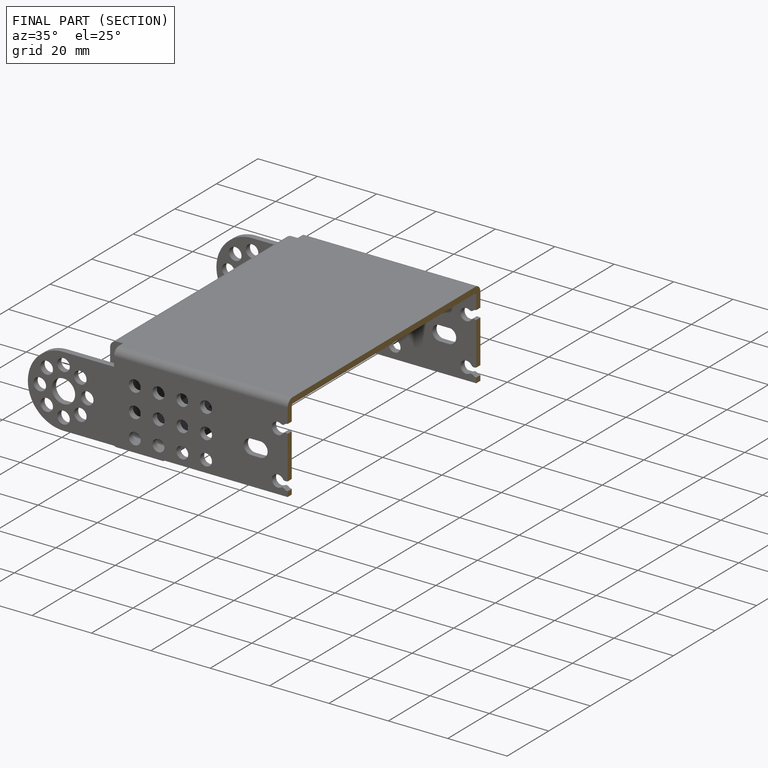
[diagram: finished part — half-section view (interior)]
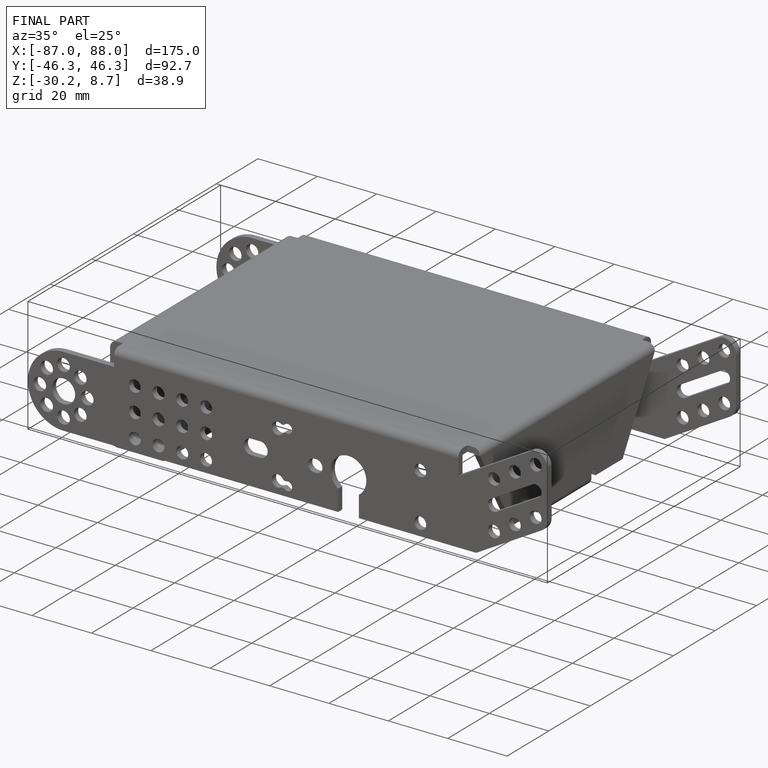
[diagram: finished part — iso view with bounding-box wireframe]
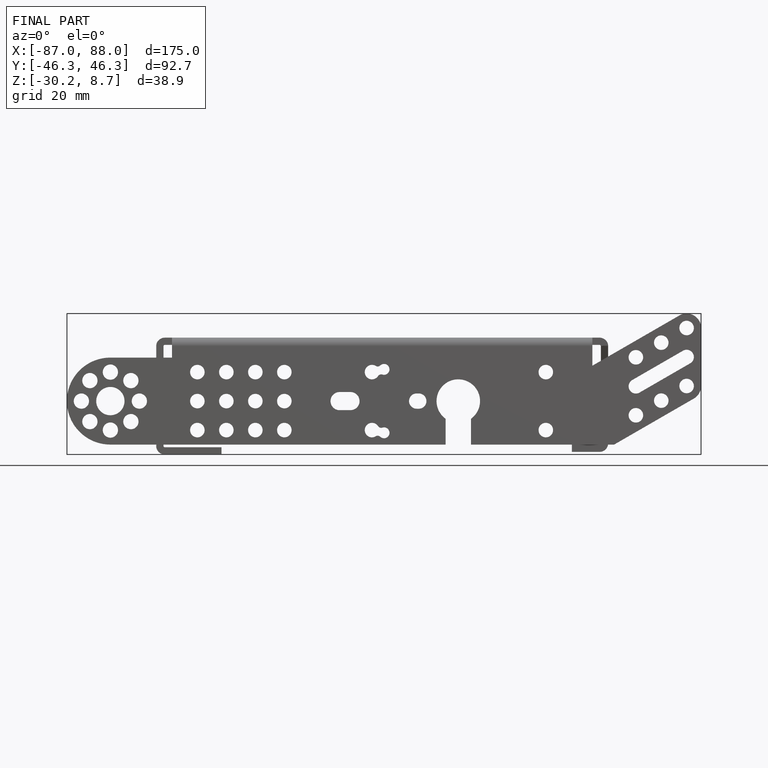
[diagram: finished part — front view with bounding-box wireframe]
